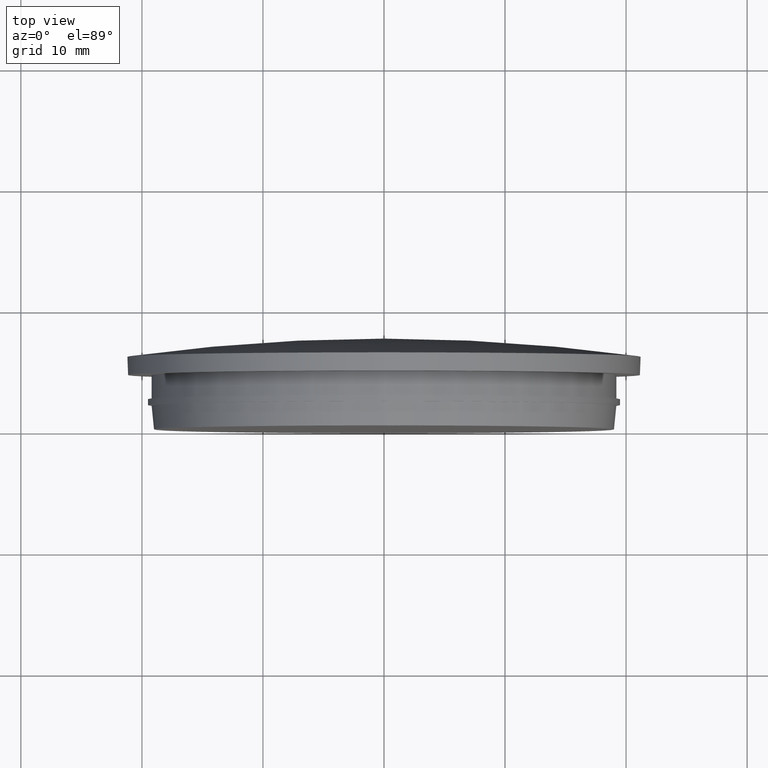
[diagram: clean part render]
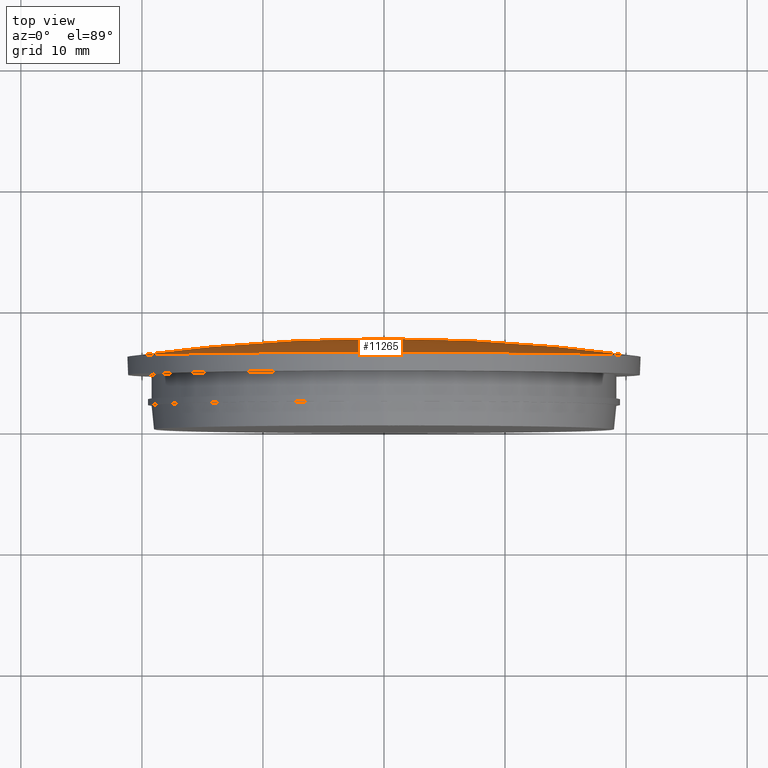
[diagram: same view with one face highlighted and labeled with its STEP entity id]
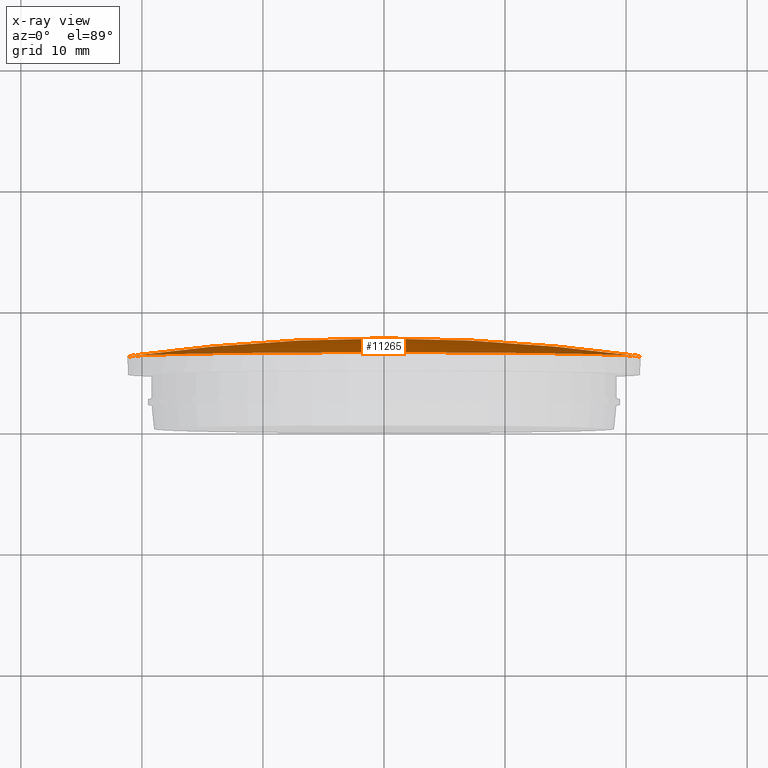
[diagram: x-ray of the same camera — body ghosted, the highlighted face saturated]
A machine part, top view. The second image highlights one B-rep face of the part: STEP entity #11265.
The next image is the same camera in x-ray: the body ghosted, the highlighted face saturated — about 0% of this face is hidden behind the body in this view.
In plain terms, the highlighted spherical surface has radius 150.563 mm.
Its self-contained STEP definition (entity closure, byte-faithful):
#150 = CIRCLE ( 'NONE', #11526, 150.5633333333346700 ) ;
#201 = AXIS2_PLACEMENT_3D ( 'NONE', #11138, #2366, #10210 ) ;
#817 = EDGE_CURVE ( 'NONE', #3321, #10681, #150, .T. ) ;
#1492 = VERTEX_POINT ( 'NONE', #2671 ) ;
#1970 = CIRCLE ( 'NONE', #9849, 150.5633333333346700 ) ;
#2105 = CARTESIAN_POINT ( 'NONE',  ( 0.0000000000000000000, -143.0633333333346400, 0.0000000000000000000 ) ) ;
#2119 = DIRECTION ( 'NONE',  ( 0.0000000000000000000, 0.0000000000000000000, 1.000000000000000000 ) ) ;
#2366 = DIRECTION ( 'NONE',  ( -0.0000000000000000000, 1.000000000000000000, -0.0000000000000000000 ) ) ;
#2671 = CARTESIAN_POINT ( 'NONE',  ( 0.0000000000000000000, 6.000000000000003600, 21.19999999999999900 ) ) ;
#3103 = DIRECTION ( 'NONE',  ( 1.000000000000000000, 0.0000000000000000000, 0.0000000000000000000 ) ) ;
#3321 = VERTEX_POINT ( 'NONE', #8518 ) ;
#3515 = DIRECTION ( 'NONE',  ( 1.224646799147353200E-016, 0.0000000000000000000, -1.000000000000000000 ) ) ;
#3955 = SPHERICAL_SURFACE ( 'NONE', #8515, 150.5633333333346700 ) ;
#4010 = VERTEX_POINT ( 'NONE', #12603 ) ;
#4379 = CIRCLE ( 'NONE', #12523, 21.19999999999999900 ) ;
#4986 = DIRECTION ( 'NONE',  ( 0.0000000000000000000, 0.0000000000000000000, -1.000000000000000000 ) ) ;
#5398 = DIRECTION ( 'NONE',  ( 0.0000000000000000000, 0.0000000000000000000, 1.000000000000000000 ) ) ;
#6190 = ORIENTED_EDGE ( 'NONE', *, *, #11391, .T. ) ;
#6408 = ORIENTED_EDGE ( 'NONE', *, *, #817, .T. ) ;
#8098 = ORIENTED_EDGE ( 'NONE', *, *, #11931, .F. ) ;
#8459 = CARTESIAN_POINT ( 'NONE',  ( 0.0000000000000000000, -143.0633333333346400, 0.0000000000000000000 ) ) ;
#8515 = AXIS2_PLACEMENT_3D ( 'NONE', #2105, #4986, #3103 ) ;
#8518 = CARTESIAN_POINT ( 'NONE',  ( 21.20000000000003100, 6.000000000000004400, 0.0000000000000000000 ) ) ;
#9485 = DIRECTION ( 'NONE',  ( -1.000000000000000000, 0.0000000000000000000, -1.224646799147353000E-016 ) ) ;
#9849 = AXIS2_PLACEMENT_3D ( 'NONE', #8459, #3515, #9485 ) ;
#9921 = DIRECTION ( 'NONE',  ( -0.0000000000000000000, 1.000000000000000000, -0.0000000000000000000 ) ) ;
#9969 = CARTESIAN_POINT ( 'NONE',  ( 0.0000000000000000000, 6.000000000000003600, 0.0000000000000000000 ) ) ;
#10210 = DIRECTION ( 'NONE',  ( 0.0000000000000000000, 0.0000000000000000000, 1.000000000000000000 ) ) ;
#10349 = EDGE_LOOP ( 'NONE', ( #8098, #6190, #12422, #6408 ) ) ;
#10408 = CIRCLE ( 'NONE', #201, 21.19999999999999900 ) ;
#10681 = VERTEX_POINT ( 'NONE', #11733 ) ;
#11138 = CARTESIAN_POINT ( 'NONE',  ( 0.0000000000000000000, 6.000000000000003600, 0.0000000000000000000 ) ) ;
#11265 = ADVANCED_FACE ( 'NONE', ( #11842 ), #3955, .T. ) ;
#11269 = CARTESIAN_POINT ( 'NONE',  ( 0.0000000000000000000, -143.0633333333346400, 0.0000000000000000000 ) ) ;
#11391 = EDGE_CURVE ( 'NONE', #4010, #1492, #10408, .T. ) ;
#11526 = AXIS2_PLACEMENT_3D ( 'NONE', #11269, #5398, #12324 ) ;
#11733 = CARTESIAN_POINT ( 'NONE',  ( 9.219345211781213500E-015, 7.500000000000007100, 0.0000000000000000000 ) ) ;
#11842 = FACE_OUTER_BOUND ( 'NONE', #10349, .T. ) ;
#11931 = EDGE_CURVE ( 'NONE', #4010, #10681, #1970, .T. ) ;
#12255 = EDGE_CURVE ( 'NONE', #1492, #3321, #4379, .T. ) ;
#12324 = DIRECTION ( 'NONE',  ( 1.000000000000000000, 0.0000000000000000000, 0.0000000000000000000 ) ) ;
#12422 = ORIENTED_EDGE ( 'NONE', *, *, #12255, .T. ) ;
#12523 = AXIS2_PLACEMENT_3D ( 'NONE', #9969, #9921, #2119 ) ;
#12603 = CARTESIAN_POINT ( 'NONE',  ( -21.20000000000003100, 6.000000000000004400, -2.596251214192392700E-015 ) ) ;